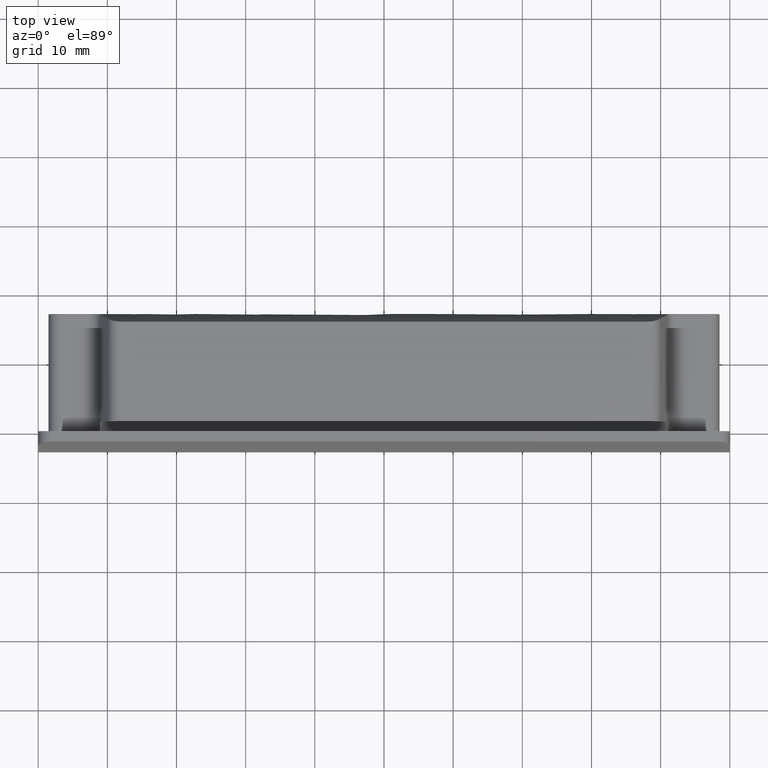
[diagram: clean part render]
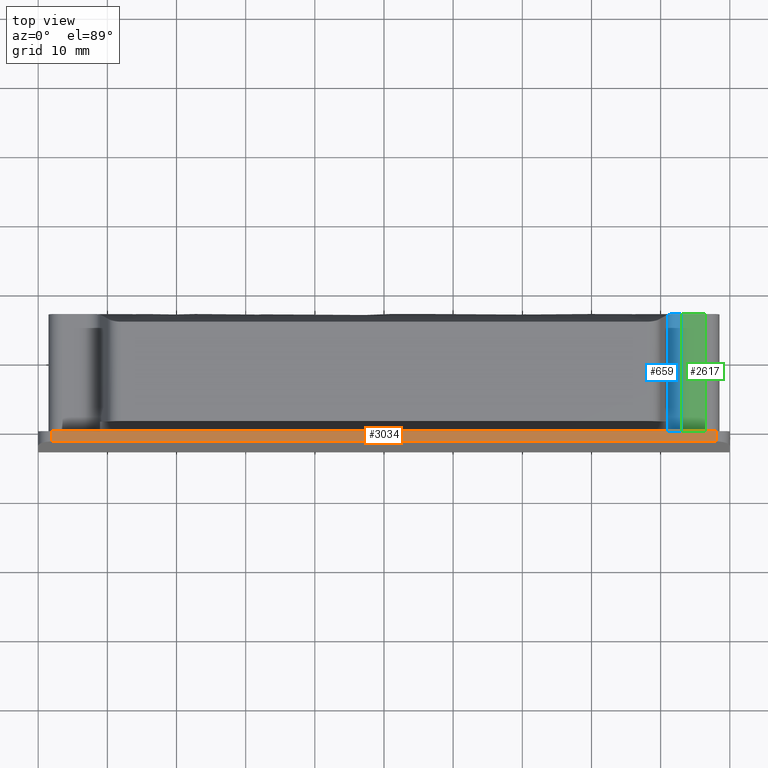
[diagram: same view with three faces highlighted in distinct colors, each labeled with its STEP entity id]
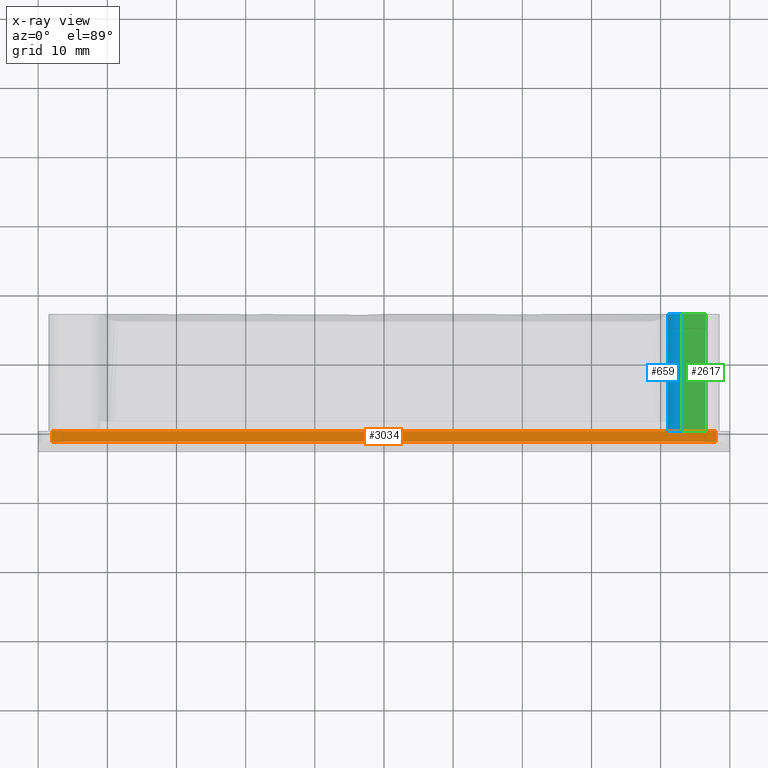
[diagram: x-ray of the same camera — body ghosted, the three highlighted faces saturated]
A machine part, top view with three faces highlighted in distinct colors.
The next image is the same camera in x-ray (body ghosted, the three faces saturated) — at least one of them is partly hidden behind the body in this view.
Their STEP definitions:

[orange] entity #3034 — the highlighted face is a freeform B-spline surface patch.
#58=CARTESIAN_POINT('',(-48.0,-1.500000000000085,-3.000000000000085));
#59=VERTEX_POINT('',#58);
#75=CARTESIAN_POINT('',(-48.0,0.0,-3.0));
#76=VERTEX_POINT('',#75);
#77=CARTESIAN_POINT('',(-48.0,0.0,-3.0));
#78=CARTESIAN_POINT('',(-48.0,-1.500000000000085,-3.000000000000085));
#79=QUASI_UNIFORM_CURVE('',1,(#77,#78),.UNSPECIFIED.,.F.,.U.);
#80=EDGE_CURVE('',#76,#59,#79,.T.);
#121=CARTESIAN_POINT('',(48.0,-1.500000000000085,-3.000000000000085));
#122=VERTEX_POINT('',#121);
#143=CARTESIAN_POINT('',(48.0,0.0,-3.0));
#144=VERTEX_POINT('',#143);
#158=CARTESIAN_POINT('',(48.0,-1.500000000000085,-3.000000000000085));
#159=CARTESIAN_POINT('',(48.0,0.0,-3.0));
#160=QUASI_UNIFORM_CURVE('',1,(#158,#159),.UNSPECIFIED.,.F.,.U.);
#161=EDGE_CURVE('',#122,#144,#160,.T.);
#2994=CARTESIAN_POINT('',(48.0,0.0,-3.0));
#2995=CARTESIAN_POINT('',(-48.0,0.0,-3.0));
#2996=QUASI_UNIFORM_CURVE('',1,(#2994,#2995),.UNSPECIFIED.,.F.,.U.);
#2997=EDGE_CURVE('',#144,#76,#2996,.T.);
#3019=CARTESIAN_POINT('',(-52.795199813933380,-1.574924997092799,-3.0));
#3020=CARTESIAN_POINT('',(52.795202388854030,-1.574924997092799,-3.0));
#3021=CARTESIAN_POINT('',(-52.795199813933380,0.074925037325848,-3.0));
#3022=CARTESIAN_POINT('',(52.795202388854030,0.074925037325848,-3.0));
#3023=B_SPLINE_SURFACE_WITH_KNOTS('',1,1,((#3019,#3021),(#3020,#3022)),.UNSPECIFIED.,.F.,.F.,.U.,(2,2),(2,2),(0.0,105.590402202787400),(0.041708334948495,0.958291687403247),.UNSPECIFIED.);
#3024=CARTESIAN_POINT('',(48.0,-1.500000000000085,-3.000000000000085));
#3025=CARTESIAN_POINT('',(-48.0,-1.500000000000085,-3.000000000000085));
#3026=QUASI_UNIFORM_CURVE('',1,(#3024,#3025),.UNSPECIFIED.,.F.,.U.);
#3027=EDGE_CURVE('',#122,#59,#3026,.T.);
#3028=ORIENTED_EDGE('',*,*,#3027,.F.);
#3029=ORIENTED_EDGE('',*,*,#161,.T.);
#3030=ORIENTED_EDGE('',*,*,#2997,.T.);
#3031=ORIENTED_EDGE('',*,*,#80,.T.);
#3032=EDGE_LOOP('',(#3028,#3029,#3030,#3031));
#3033=FACE_OUTER_BOUND('',#3032,.T.);
#3034=ADVANCED_FACE('',(#3033),#3023,.T.);

[blue] entity #659 — the highlighted face is a freeform B-spline surface patch.
#585=CARTESIAN_POINT('',(41.049888018003841,-0.424897938169193,-5.034476752156274));
#586=CARTESIAN_POINT('',(41.049888018003848,17.431437913390710,-5.034476752156274));
#587=CARTESIAN_POINT('',(41.481895902000474,-0.424897938169195,-6.592246856715163));
#588=CARTESIAN_POINT('',(41.481895902000474,17.431437913390713,-6.592246856715159));
#589=CARTESIAN_POINT('',(43.095621018997782,-0.424897938169195,-6.496488007178262));
#590=CARTESIAN_POINT('',(43.095621018997790,17.431437913390713,-6.496488007178256));
#598=(BOUNDED_SURFACE()B_SPLINE_SURFACE(1,2,((#585,#587,#589),(#586,#588,#590)),.UNSPECIFIED.,.F.,.F.,.U.)B_SPLINE_SURFACE_WITH_KNOTS((2,2),(3,3),(0.0,17.856335851559908),(0.0,2.828853045831140),.UNSPECIFIED.)GEOMETRIC_REPRESENTATION_ITEM()RATIONAL_B_SPLINE_SURFACE(((1.0,0.775071917070256,0.993209407843154),(1.0,0.775071917070256,0.993209407843154)))REPRESENTATION_ITEM('')SURFACE());
#599=CARTESIAN_POINT('',(41.065590794552897,16.917391105436600,-5.088171332296540));
#600=VERTEX_POINT('',#599);
#601=CARTESIAN_POINT('',(42.977148924420952,16.995917526767300,-6.500000000000000));
#602=VERTEX_POINT('',#601);
#603=CARTESIAN_POINT('',(41.065590794552897,16.917391105436650,-5.088171332296550));
#604=CARTESIAN_POINT('',(41.096951814213099,16.926683675827640,-5.190094715502437));
#605=CARTESIAN_POINT('',(41.136012625991540,16.934843626185529,-5.288227078475715));
#606=CARTESIAN_POINT('',(41.228947380153272,16.949258670445040,-5.477177648770598));
#607=CARTESIAN_POINT('',(41.282821628356409,16.955512387813840,-5.567995806838716));
#608=CARTESIAN_POINT('',(41.375150267428879,16.963679785300378,-5.698515878242452));
#609=CARTESIAN_POINT('',(41.407776717753038,16.966189312204609,-5.740919795568884));
#610=CARTESIAN_POINT('',(41.475727650808473,16.970765264327369,-5.822325686523694));
#611=CARTESIAN_POINT('',(41.511178576496320,16.972843333963731,-5.861511443339070));
#612=CARTESIAN_POINT('',(41.621888658160472,16.978531759433530,-5.974584516413108));
#613=CARTESIAN_POINT('',(41.701477602070327,16.981599094741352,-6.044015987050772));
#614=CARTESIAN_POINT('',(41.829752903506183,16.985385905750981,-6.138997572885046));
#615=CARTESIAN_POINT('',(41.874144715783942,16.986513756963330,-6.169194269055836));
#616=CARTESIAN_POINT('',(41.964403165721322,16.988502925834030,-6.225448875033887));
#617=CARTESIAN_POINT('',(42.010426378352641,16.989369874178902,-6.251638394869386));
#618=CARTESIAN_POINT('',(42.151123035171914,16.991659752170651,-6.324510734449021));
#619=CARTESIAN_POINT('',(42.248407120043488,16.992775621420758,-6.365532787197834));
#620=CARTESIAN_POINT('',(42.399644051731620,16.994039320324259,-6.415543635997225));
#621=CARTESIAN_POINT('',(42.451155253333539,16.994392223864882,-6.430331264374167));
#622=CARTESIAN_POINT('',(42.554848187035532,16.994975766434930,-6.455635502707009));
#623=CARTESIAN_POINT('',(42.606976289527147,16.995206837642630,-6.466161144257504));
#624=CARTESIAN_POINT('',(42.764191793305251,16.995750272447530,-6.491461513450778));
#625=CARTESIAN_POINT('',(42.870105041352367,16.995917526767290,-6.499999999999996));
#626=CARTESIAN_POINT('',(42.977148924420902,16.995917526767300,-6.500000000000000));
#627=B_SPLINE_CURVE_WITH_KNOTS('',3,(#603,#604,#605,#606,#607,#608,#609,#610,#611,#612,#613,#614,#615,#616,#617,#618,#619,#620,#621,#622,#623,#624,#625,#626),.UNSPECIFIED.,.F.,.U.,(4,2,2,2,2,2,2,2,2,2,2,4),(0.0,0.124999999999992,0.249999999999985,0.312499999999983,0.374999999999982,0.499999999999979,0.562499999999980,0.624999999999981,0.749999999999985,0.812499999999987,0.874999999999988,1.0),.UNSPECIFIED.);
#628=EDGE_CURVE('',#600,#602,#627,.T.);
#629=ORIENTED_EDGE('',*,*,#628,.F.);
#630=CARTESIAN_POINT('',(41.065590794552897,-1.005784E-014,-5.088171332296550));
#631=VERTEX_POINT('',#630);
#632=CARTESIAN_POINT('',(41.065590794552897,-1.005784E-014,-5.088171332296550));
#633=CARTESIAN_POINT('',(41.065590794552897,16.917391105436600,-5.088171332296540));
#634=QUASI_UNIFORM_CURVE('',1,(#632,#633),.UNSPECIFIED.,.F.,.U.);
#635=EDGE_CURVE('',#631,#600,#634,.T.);
#636=ORIENTED_EDGE('',*,*,#635,.F.);
#637=CARTESIAN_POINT('',(42.977148924420902,-1.052602E-014,-6.500000000000000));
#638=VERTEX_POINT('',#637);
#639=CARTESIAN_POINT('',(42.977148924420902,0.0,-6.500000000000000));
#640=CARTESIAN_POINT('',(41.499999319976567,0.0,-6.500000000000001));
#641=CARTESIAN_POINT('',(41.065590794552890,0.0,-5.088171332296557));
#649=(BOUNDED_CURVE()B_SPLINE_CURVE(2,(#639,#640,#641),.UNSPECIFIED.,.F.,.U.)CURVE()GEOMETRIC_REPRESENTATION_ITEM()QUASI_UNIFORM_CURVE()RATIONAL_B_SPLINE_CURVE((1.0,0.804389727106295,1.0))REPRESENTATION_ITEM(''));
#650=EDGE_CURVE('',#638,#631,#649,.T.);
#651=ORIENTED_EDGE('',*,*,#650,.F.);
#652=CARTESIAN_POINT('',(42.977148924420952,16.995917526767300,-6.500000000000000));
#653=CARTESIAN_POINT('',(42.977148924420902,-1.052602E-014,-6.500000000000000));
#654=QUASI_UNIFORM_CURVE('',1,(#652,#653),.UNSPECIFIED.,.F.,.U.);
#655=EDGE_CURVE('',#602,#638,#654,.T.);
#656=ORIENTED_EDGE('',*,*,#655,.F.);
#657=EDGE_LOOP('',(#629,#636,#651,#656));
#658=FACE_OUTER_BOUND('',#657,.T.);
#659=ADVANCED_FACE('',(#658),#598,.F.);

[green] entity #2617 — the highlighted face is a freeform B-spline surface patch.
#601=CARTESIAN_POINT('',(42.977148924420952,16.995917526767300,-6.500000000000000));
#602=VERTEX_POINT('',#601);
#637=CARTESIAN_POINT('',(42.977148924420902,-1.052602E-014,-6.500000000000000));
#638=VERTEX_POINT('',#637);
#652=CARTESIAN_POINT('',(42.977148924420952,16.995917526767300,-6.500000000000000));
#653=CARTESIAN_POINT('',(42.977148924420902,-1.052602E-014,-6.500000000000000));
#654=QUASI_UNIFORM_CURVE('',1,(#652,#653),.UNSPECIFIED.,.F.,.U.);
#655=EDGE_CURVE('',#602,#638,#654,.T.);
#674=CARTESIAN_POINT('',(46.500000000000000,16.995917526767300,-6.500000000000000));
#675=VERTEX_POINT('',#674);
#706=CARTESIAN_POINT('',(46.500000000000000,-1.138884E-014,-6.500000000000000));
#707=VERTEX_POINT('',#706);
#708=CARTESIAN_POINT('',(46.500000000000000,-1.138884E-014,-6.500000000000000));
#709=CARTESIAN_POINT('',(46.500000000000000,16.995917526767300,-6.500000000000000));
#710=QUASI_UNIFORM_CURVE('',1,(#708,#709),.UNSPECIFIED.,.F.,.U.);
#711=EDGE_CURVE('',#707,#675,#710,.T.);
#2598=CARTESIAN_POINT('',(42.801183611333883,17.844864372015511,-6.500000000000000));
#2599=CARTESIAN_POINT('',(46.675966446969781,17.844864372015511,-6.500000000000000));
#2600=CARTESIAN_POINT('',(42.801183611333883,-0.848946541337531,-6.500000000000000));
#2601=CARTESIAN_POINT('',(46.675966446969781,-0.848946541337531,-6.500000000000000));
#2602=B_SPLINE_SURFACE_WITH_KNOTS('',1,1,((#2598,#2600),(#2599,#2601)),.UNSPECIFIED.,.F.,.F.,.U.,(2,2),(2,2),(0.0,3.874782835635905),(0.0,18.693810913353040),.UNSPECIFIED.);
#2603=CARTESIAN_POINT('',(46.500000000000000,-1.138884E-014,-6.500000000000000));
#2604=CARTESIAN_POINT('',(42.977148924420902,-1.052602E-014,-6.500000000000000));
#2605=QUASI_UNIFORM_CURVE('',1,(#2603,#2604),.UNSPECIFIED.,.F.,.U.);
#2606=EDGE_CURVE('',#707,#638,#2605,.T.);
#2607=ORIENTED_EDGE('',*,*,#2606,.F.);
#2608=ORIENTED_EDGE('',*,*,#711,.T.);
#2609=CARTESIAN_POINT('',(42.977148924420952,16.995917526767300,-6.500000000000000));
#2610=CARTESIAN_POINT('',(46.500000000000000,16.995917526767300,-6.500000000000000));
#2611=QUASI_UNIFORM_CURVE('',1,(#2609,#2610),.UNSPECIFIED.,.F.,.U.);
#2612=EDGE_CURVE('',#602,#675,#2611,.T.);
#2613=ORIENTED_EDGE('',*,*,#2612,.F.);
#2614=ORIENTED_EDGE('',*,*,#655,.T.);
#2615=EDGE_LOOP('',(#2607,#2608,#2613,#2614));
#2616=FACE_OUTER_BOUND('',#2615,.T.);
#2617=ADVANCED_FACE('',(#2616),#2602,.F.);